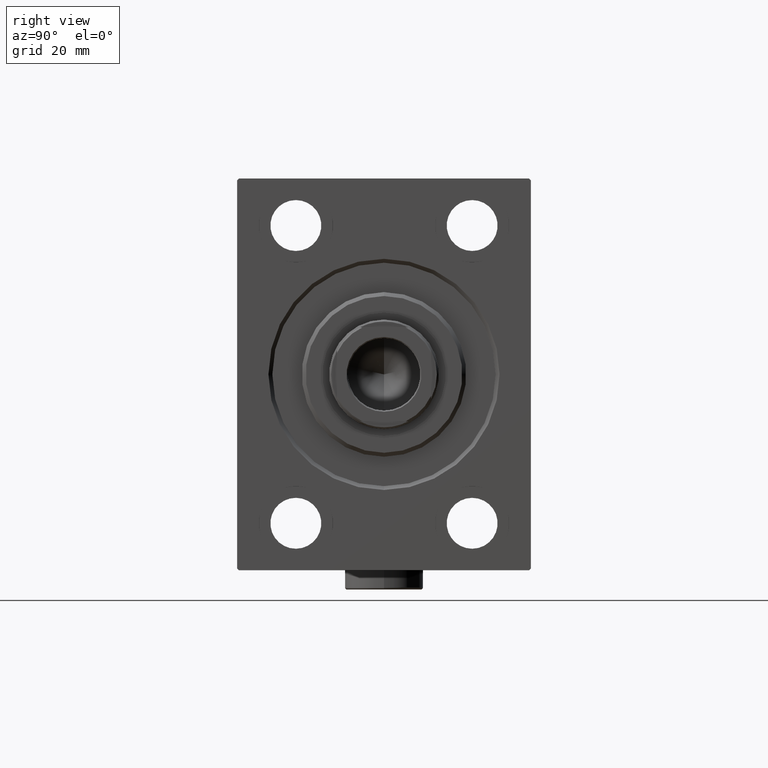
[diagram: clean part render]
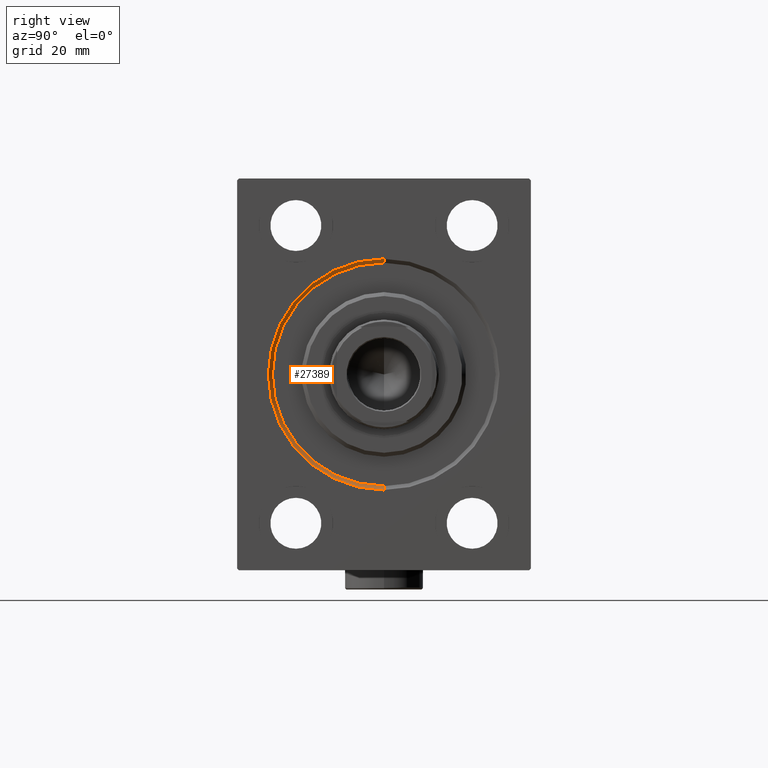
[diagram: same view with one face highlighted and labeled with its STEP entity id]
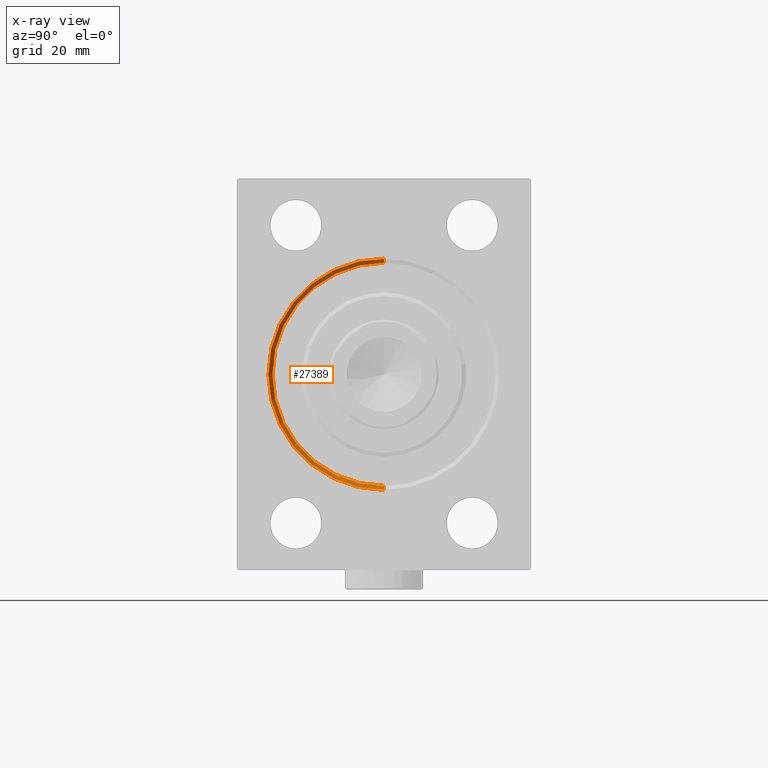
[diagram: x-ray of the same camera — body ghosted, the highlighted face saturated]
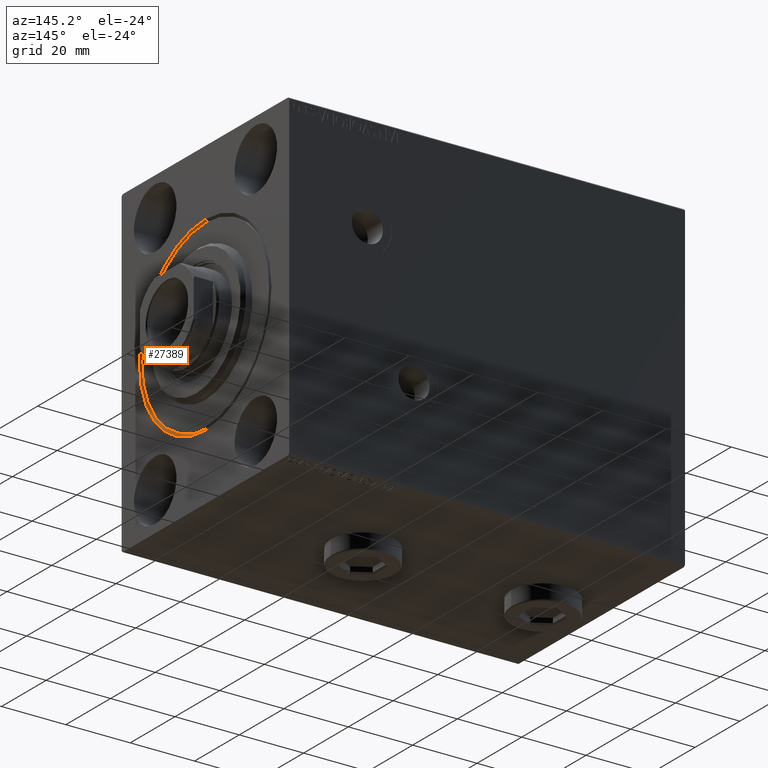
[diagram: same view with one face highlighted and labeled with its STEP entity id]
A machine part, right view. The second image highlights one B-rep face of the part: STEP entity #27389.
The next image is the same camera in x-ray: the body ghosted, the highlighted face saturated — about 0% of this face is hidden behind the body in this view.
A second angle (auxiliary view) of the same face is appended — the face is thin or edge-on in the first view.
In plain terms, the highlighted conical surface has half-angle 45 deg.
Its self-contained STEP definition (entity closure, byte-faithful):
#157 = AXIS2_PLACEMENT_3D ( 'NONE', #37441, #43322, #12580 ) ;
#1521 = VERTEX_POINT ( 'NONE', #9980 ) ;
#2676 = LINE ( 'NONE', #33845, #23753 ) ;
#2848 = DIRECTION ( 'NONE',  ( 0.000000000000000000, 0.000000000000000000, 1.000000000000000000 ) ) ;
#3288 = AXIS2_PLACEMENT_3D ( 'NONE', #19426, #30149, #12927 ) ;
#4687 = ORIENTED_EDGE ( 'NONE', *, *, #44913, .F. ) ;
#4893 = ORIENTED_EDGE ( 'NONE', *, *, #29989, .F. ) ;
#9631 = LINE ( 'NONE', #41251, #30446 ) ;
#9980 = CARTESIAN_POINT ( 'NONE',  ( 1.000000000000032196, 3.490243377569956456E-15, -28.50000000000000000 ) ) ;
#10300 = CONICAL_SURFACE ( 'NONE', #41497, 28.50000000000000000, 0.7853981633974533860 ) ;
#11434 = ORIENTED_EDGE ( 'NONE', *, *, #39926, .F. ) ;
#12580 = DIRECTION ( 'NONE',  ( 0.000000000000000000, 0.000000000000000000, -1.000000000000000000 ) ) ;
#12927 = DIRECTION ( 'NONE',  ( 0.000000000000000000, 0.000000000000000000, -1.000000000000000000 ) ) ;
#12934 = CIRCLE ( 'NONE', #3288, 28.50000000000000000 ) ;
#13549 = DIRECTION ( 'NONE',  ( -1.000000000000000000, 0.000000000000000000, 0.000000000000000000 ) ) ;
#14994 = EDGE_CURVE ( 'NONE', #1521, #33477, #9631, .T. ) ;
#16114 = VERTEX_POINT ( 'NONE', #37708 ) ;
#19426 = CARTESIAN_POINT ( 'NONE',  ( 1.000000000000032196, 0.000000000000000000, 0.000000000000000000 ) ) ;
#20514 = CARTESIAN_POINT ( 'NONE',  ( 1.000000000000032196, 0.000000000000000000, 0.000000000000000000 ) ) ;
#21521 = CARTESIAN_POINT ( 'NONE',  ( 0.000000000000000000, 3.612708057484697126E-15, -29.50000000000004263 ) ) ;
#23753 = VECTOR ( 'NONE', #41718, 1000.000000000000000 ) ;
#24035 = DIRECTION ( 'NONE',  ( -0.7071067811865439090, 8.659560562354979697E-17, -0.7071067811865512365 ) ) ;
#26172 = CIRCLE ( 'NONE', #157, 29.50000000000004263 ) ;
#27389 = ADVANCED_FACE ( 'NONE', ( #45385 ), #10300, .F. ) ;
#27695 = ORIENTED_EDGE ( 'NONE', *, *, #14994, .T. ) ;
#28146 = EDGE_LOOP ( 'NONE', ( #4687, #27695, #11434, #4893 ) ) ;
#29989 = EDGE_CURVE ( 'NONE', #34869, #16114, #2676, .T. ) ;
#30149 = DIRECTION ( 'NONE',  ( -1.000000000000000000, 0.000000000000000000, 0.000000000000000000 ) ) ;
#30446 = VECTOR ( 'NONE', #24035, 1000.000000000000000 ) ;
#33477 = VERTEX_POINT ( 'NONE', #21521 ) ;
#33845 = CARTESIAN_POINT ( 'NONE',  ( 1.000000000000032196, 0.000000000000000000, 28.50000000000000000 ) ) ;
#34869 = VERTEX_POINT ( 'NONE', #39552 ) ;
#37441 = CARTESIAN_POINT ( 'NONE',  ( 0.000000000000000000, 0.000000000000000000, 0.000000000000000000 ) ) ;
#37708 = CARTESIAN_POINT ( 'NONE',  ( 0.000000000000000000, 0.000000000000000000, 29.50000000000004263 ) ) ;
#39552 = CARTESIAN_POINT ( 'NONE',  ( 1.000000000000032196, 0.000000000000000000, 28.50000000000000000 ) ) ;
#39926 = EDGE_CURVE ( 'NONE', #16114, #33477, #26172, .T. ) ;
#41251 = CARTESIAN_POINT ( 'NONE',  ( 1.000000000000032196, 3.490243377569956456E-15, -28.50000000000000000 ) ) ;
#41497 = AXIS2_PLACEMENT_3D ( 'NONE', #20514, #13549, #2848 ) ;
#41718 = DIRECTION ( 'NONE',  ( -0.7071067811865439090, 0.000000000000000000, 0.7071067811865512365 ) ) ;
#43322 = DIRECTION ( 'NONE',  ( 1.000000000000000000, 0.000000000000000000, 0.000000000000000000 ) ) ;
#44913 = EDGE_CURVE ( 'NONE', #1521, #34869, #12934, .T. ) ;
#45385 = FACE_OUTER_BOUND ( 'NONE', #28146, .T. ) ;